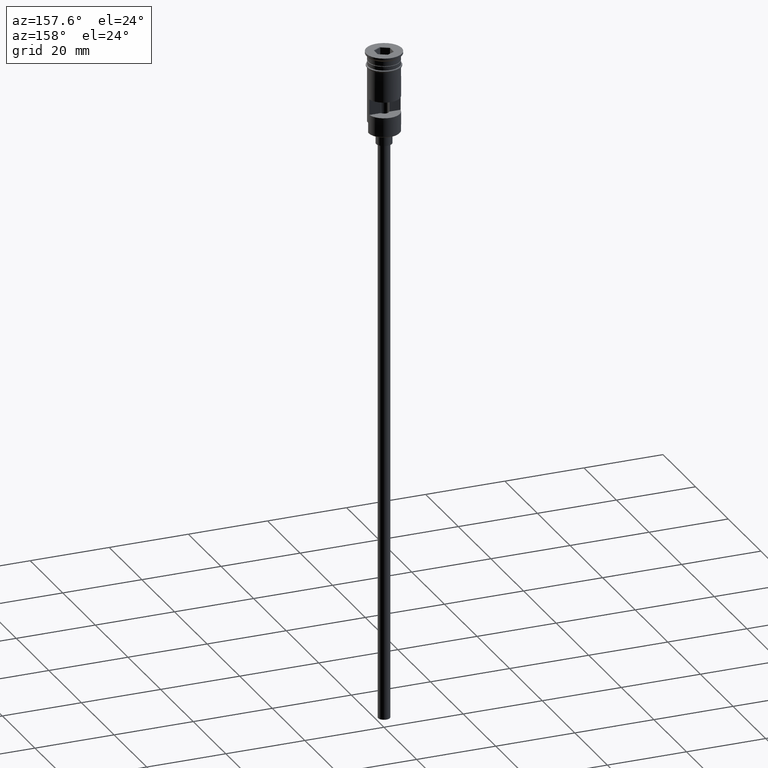
[diagram: clean part render]
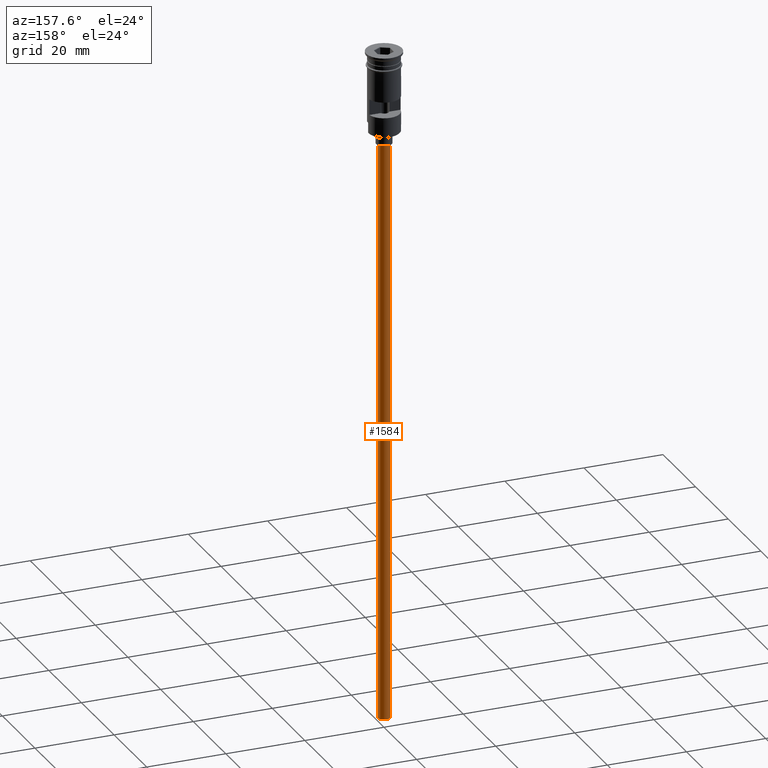
[diagram: same view with one face highlighted and labeled with its STEP entity id]
A machine part, auxiliary view. The second image highlights one B-rep face of the part: STEP entity #1584.
In plain terms, the highlighted cylindrical surface (edge-blend (fillet) strip) has radius 1.5 mm, axis along (-0, -0, 1).
Its self-contained STEP definition (entity closure, byte-faithful):
#15 = DIRECTION ( 'NONE',  ( -1.000000000000000000, 0.000000000000000000, 0.000000000000000000 ) ) ;
#20 = CIRCLE ( 'NONE', #1158, 1.500000000000000222 ) ;
#80 = ORIENTED_EDGE ( 'NONE', *, *, #606, .T. ) ;
#86 = CARTESIAN_POINT ( 'NONE',  ( -1.500000000000000222, 1.836970198721030181E-16, -170.4999999999999716 ) ) ;
#266 = AXIS2_PLACEMENT_3D ( 'NONE', #1587, #1327, #958 ) ;
#267 = VECTOR ( 'NONE', #844, 1000.000000000000000 ) ;
#288 = CARTESIAN_POINT ( 'NONE',  ( 1.500000000000000222, 0.000000000000000000, -170.4999999999999716 ) ) ;
#292 = VERTEX_POINT ( 'NONE', #1192 ) ;
#346 = DIRECTION ( 'NONE',  ( -1.000000000000000000, 0.000000000000000000, 0.000000000000000000 ) ) ;
#383 = VERTEX_POINT ( 'NONE', #775 ) ;
#386 = EDGE_LOOP ( 'NONE', ( #599, #1335, #80, #1421 ) ) ;
#511 = VERTEX_POINT ( 'NONE', #973 ) ;
#575 = DIRECTION ( 'NONE',  ( -0.000000000000000000, -0.000000000000000000, 1.000000000000000000 ) ) ;
#598 = CARTESIAN_POINT ( 'NONE',  ( 1.500000000000000222, 0.000000000000000000, -170.4999999999999716 ) ) ;
#599 = ORIENTED_EDGE ( 'NONE', *, *, #713, .F. ) ;
#606 = EDGE_CURVE ( 'NONE', #383, #292, #20, .T. ) ;
#618 = EDGE_CURVE ( 'NONE', #1121, #292, #860, .T. ) ;
#622 = CARTESIAN_POINT ( 'NONE',  ( 0.000000000000000000, 0.000000000000000000, -23.49999999999999645 ) ) ;
#689 = AXIS2_PLACEMENT_3D ( 'NONE', #1128, #995, #15 ) ;
#713 = EDGE_CURVE ( 'NONE', #511, #1121, #1187, .T. ) ;
#719 = LINE ( 'NONE', #86, #1448 ) ;
#775 = CARTESIAN_POINT ( 'NONE',  ( -1.500000000000000222, 1.836970198721030181E-16, -23.49999999999999645 ) ) ;
#844 = DIRECTION ( 'NONE',  ( -0.000000000000000000, -0.000000000000000000, 1.000000000000000000 ) ) ;
#860 = LINE ( 'NONE', #598, #267 ) ;
#949 = FACE_OUTER_BOUND ( 'NONE', #386, .T. ) ;
#958 = DIRECTION ( 'NONE',  ( 1.000000000000000000, 0.000000000000000000, 0.000000000000000000 ) ) ;
#973 = CARTESIAN_POINT ( 'NONE',  ( -1.500000000000000222, 1.836970198721030181E-16, -170.4999999999999716 ) ) ;
#995 = DIRECTION ( 'NONE',  ( 0.000000000000000000, 0.000000000000000000, -1.000000000000000000 ) ) ;
#1087 = CYLINDRICAL_SURFACE ( 'NONE', #266, 1.500000000000000222 ) ;
#1121 = VERTEX_POINT ( 'NONE', #288 ) ;
#1128 = CARTESIAN_POINT ( 'NONE',  ( 0.000000000000000000, 0.000000000000000000, -170.4999999999999716 ) ) ;
#1150 = EDGE_CURVE ( 'NONE', #511, #383, #719, .T. ) ;
#1158 = AXIS2_PLACEMENT_3D ( 'NONE', #622, #1249, #346 ) ;
#1187 = CIRCLE ( 'NONE', #689, 1.500000000000000222 ) ;
#1192 = CARTESIAN_POINT ( 'NONE',  ( 1.500000000000000222, 0.000000000000000000, -23.49999999999999645 ) ) ;
#1249 = DIRECTION ( 'NONE',  ( 0.000000000000000000, 0.000000000000000000, -1.000000000000000000 ) ) ;
#1327 = DIRECTION ( 'NONE',  ( -0.000000000000000000, -0.000000000000000000, 1.000000000000000000 ) ) ;
#1335 = ORIENTED_EDGE ( 'NONE', *, *, #1150, .T. ) ;
#1421 = ORIENTED_EDGE ( 'NONE', *, *, #618, .F. ) ;
#1448 = VECTOR ( 'NONE', #575, 1000.000000000000000 ) ;
#1584 = ADVANCED_FACE ( 'NONE', ( #949 ), #1087, .T. ) ;
#1587 = CARTESIAN_POINT ( 'NONE',  ( 0.000000000000000000, 0.000000000000000000, -170.4999999999999716 ) ) ;